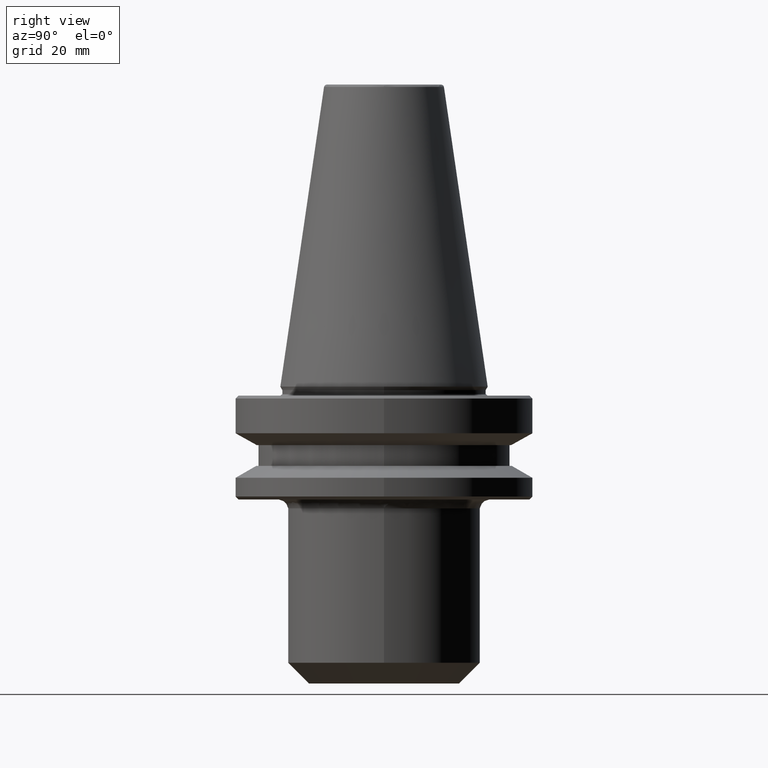
[diagram: clean part render]
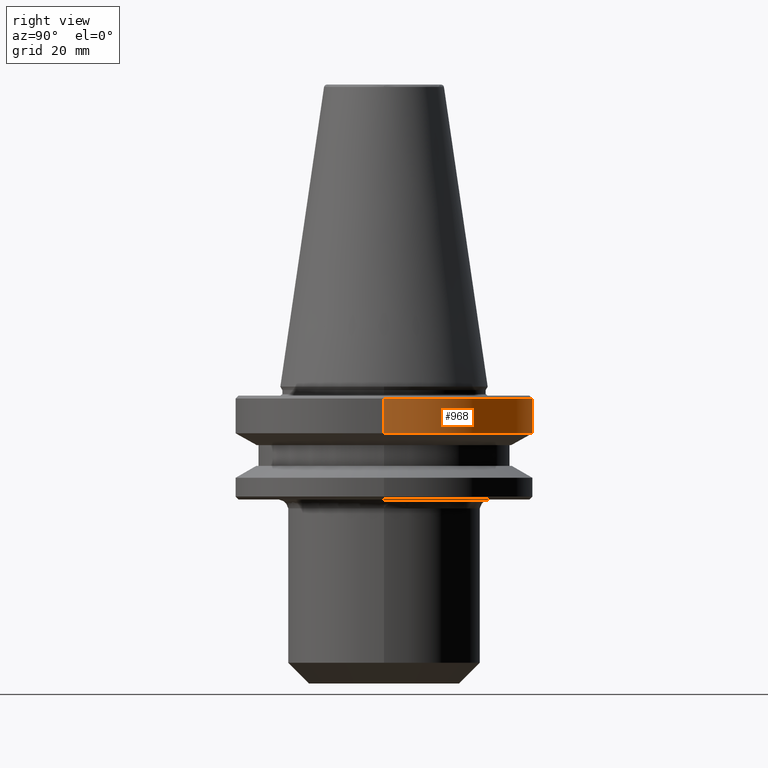
[diagram: same view with one face highlighted and labeled with its STEP entity id]
A machine part, right view. The second image highlights one B-rep face of the part: STEP entity #968.
In plain terms, the highlighted cylindrical surface (partial cylindrical patch) has radius 50 mm, axis along (0, 0, 1).
Its self-contained STEP definition (entity closure, byte-faithful):
#10 = DIRECTION ( 'NONE',  ( 1.000000000000000000, 0.0000000000000000000, 0.0000000000000000000 ) ) ;
#75 = AXIS2_PLACEMENT_3D ( 'NONE', #1262, #1285, #1003 ) ;
#100 = CARTESIAN_POINT ( 'NONE',  ( -50.00000000000000000, 6.123233995736766100E-015, -15.70022000322675400 ) ) ;
#130 = DIRECTION ( 'NONE',  ( 0.0000000000000000000, 0.0000000000000000000, 1.000000000000000000 ) ) ;
#133 = DIRECTION ( 'NONE',  ( -0.0000000000000000000, -0.0000000000000000000, 1.000000000000000000 ) ) ;
#137 = CIRCLE ( 'NONE', #908, 50.00000000000000000 ) ;
#181 = CARTESIAN_POINT ( 'NONE',  ( -50.00000000000000000, 6.123233995736766100E-015, 124.5046326327850600 ) ) ;
#184 = CARTESIAN_POINT ( 'NONE',  ( 0.0000000000000000000, 0.0000000000000000000, -15.70022000322675400 ) ) ;
#228 = CARTESIAN_POINT ( 'NONE',  ( 50.00000000000000000, 0.0000000000000000000, -3.999999999999989800 ) ) ;
#245 = DIRECTION ( 'NONE',  ( 0.0000000000000000000, 0.0000000000000000000, 1.000000000000000000 ) ) ;
#291 = EDGE_CURVE ( 'NONE', #820, #496, #743, .T. ) ;
#306 = DIRECTION ( 'NONE',  ( 1.000000000000000000, 0.0000000000000000000, 0.0000000000000000000 ) ) ;
#367 = EDGE_CURVE ( 'NONE', #1268, #784, #1343, .T. ) ;
#397 = ORIENTED_EDGE ( 'NONE', *, *, #674, .T. ) ;
#464 = LINE ( 'NONE', #878, #1012 ) ;
#496 = VERTEX_POINT ( 'NONE', #1308 ) ;
#536 = ORIENTED_EDGE ( 'NONE', *, *, #941, .F. ) ;
#544 = ORIENTED_EDGE ( 'NONE', *, *, #885, .F. ) ;
#650 = CYLINDRICAL_SURFACE ( 'NONE', #800, 50.00000000000000000 ) ;
#674 = EDGE_CURVE ( 'NONE', #1189, #1268, #1101, .T. ) ;
#686 = FACE_OUTER_BOUND ( 'NONE', #1197, .T. ) ;
#743 = CIRCLE ( 'NONE', #75, 50.00000000000000000 ) ;
#780 = CARTESIAN_POINT ( 'NONE',  ( 0.0000000000000000000, 0.0000000000000000000, -3.999999999999989800 ) ) ;
#783 = CARTESIAN_POINT ( 'NONE',  ( 0.0000000000000000000, 0.0000000000000000000, 124.5046326327850600 ) ) ;
#784 = VERTEX_POINT ( 'NONE', #1148 ) ;
#800 = AXIS2_PLACEMENT_3D ( 'NONE', #783, #1172, #10 ) ;
#820 = VERTEX_POINT ( 'NONE', #228 ) ;
#843 = VECTOR ( 'NONE', #130, 1000.000000000000000 ) ;
#850 = ORIENTED_EDGE ( 'NONE', *, *, #367, .T. ) ;
#878 = CARTESIAN_POINT ( 'NONE',  ( 50.00000000000000000, 0.0000000000000000000, 124.5046326327850600 ) ) ;
#882 = DIRECTION ( 'NONE',  ( -1.000000000000000000, -8.881784197001252300E-016, -3.469446951953614200E-017 ) ) ;
#885 = EDGE_CURVE ( 'NONE', #1189, #820, #464, .T. ) ;
#908 = AXIS2_PLACEMENT_3D ( 'NONE', #780, #133, #882 ) ;
#928 = DIRECTION ( 'NONE',  ( 0.0000000000000000000, 0.0000000000000000000, 1.000000000000000000 ) ) ;
#941 = EDGE_CURVE ( 'NONE', #496, #784, #137, .T. ) ;
#968 = ADVANCED_FACE ( 'NONE', ( #686 ), #650, .T. ) ;
#989 = ORIENTED_EDGE ( 'NONE', *, *, #291, .F. ) ;
#1003 = DIRECTION ( 'NONE',  ( -1.000000000000000000, 0.0000000000000000000, -3.469446951953614200E-017 ) ) ;
#1012 = VECTOR ( 'NONE', #245, 1000.000000000000000 ) ;
#1101 = CIRCLE ( 'NONE', #1162, 50.00000000000000000 ) ;
#1148 = CARTESIAN_POINT ( 'NONE',  ( -50.00000000000000000, 6.123233995736766100E-015, -3.999999999999989800 ) ) ;
#1162 = AXIS2_PLACEMENT_3D ( 'NONE', #184, #928, #306 ) ;
#1172 = DIRECTION ( 'NONE',  ( 0.0000000000000000000, 0.0000000000000000000, 1.000000000000000000 ) ) ;
#1189 = VERTEX_POINT ( 'NONE', #1235 ) ;
#1197 = EDGE_LOOP ( 'NONE', ( #397, #850, #536, #989, #544 ) ) ;
#1235 = CARTESIAN_POINT ( 'NONE',  ( 50.00000000000000000, 0.0000000000000000000, -15.70022000322675400 ) ) ;
#1262 = CARTESIAN_POINT ( 'NONE',  ( 0.0000000000000000000, 0.0000000000000000000, -3.999999999999989800 ) ) ;
#1268 = VERTEX_POINT ( 'NONE', #100 ) ;
#1285 = DIRECTION ( 'NONE',  ( -0.0000000000000000000, -0.0000000000000000000, 1.000000000000000000 ) ) ;
#1308 = CARTESIAN_POINT ( 'NONE',  ( 0.0000000000000000000, 50.00000000000000000, -3.999999999999989800 ) ) ;
#1343 = LINE ( 'NONE', #181, #843 ) ;